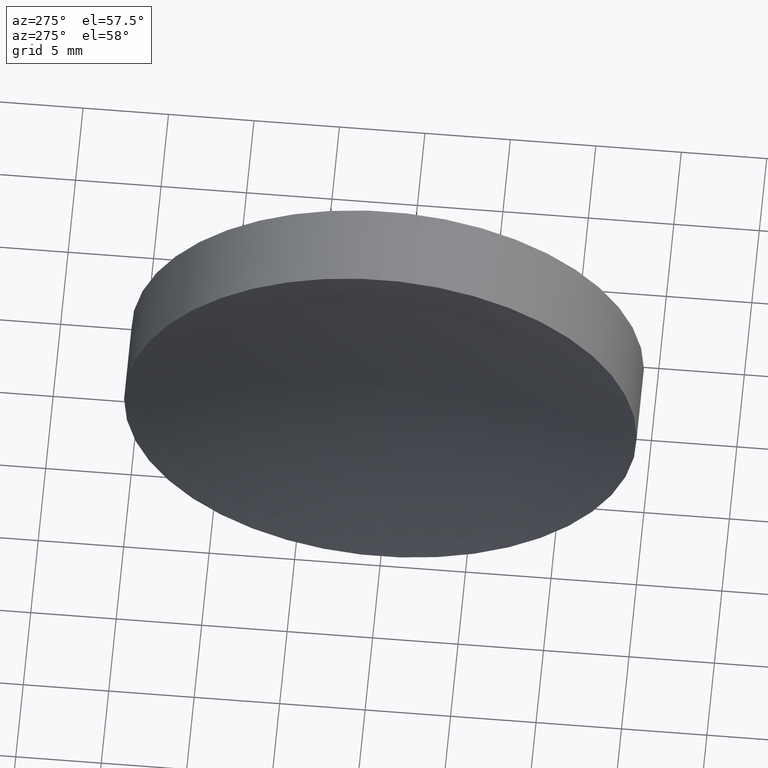
[diagram: clean part render]
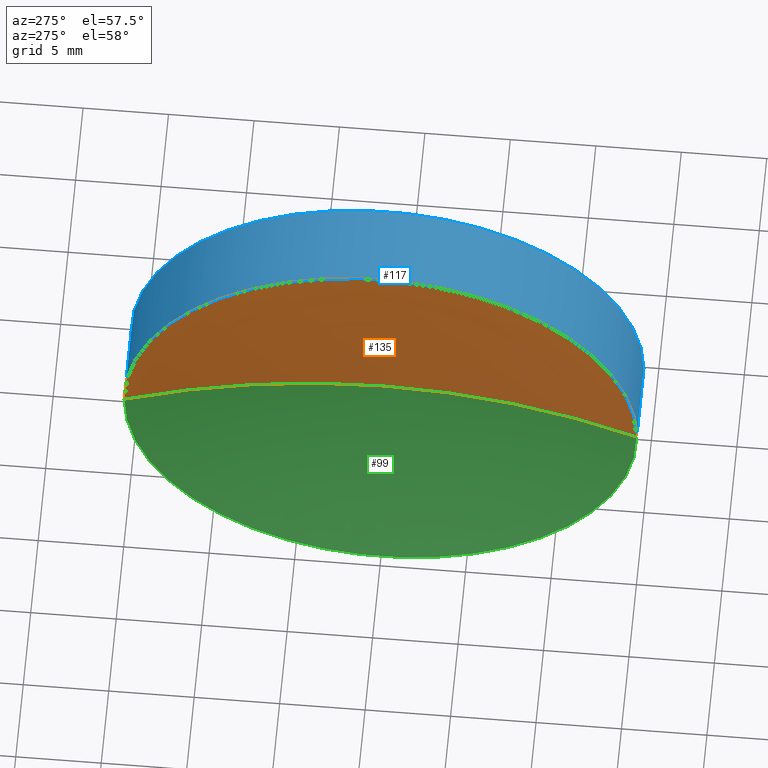
[diagram: same view with three faces highlighted in distinct colors, each labeled with its STEP entity id]
A machine part, auxiliary view with three faces highlighted in distinct colors.
Their STEP definitions:

[orange] entity #135 — the highlighted toroidal blend (fillet) surface has major radius 0.0114 mm and minor (blend) radius 51.64 mm.
#3 = TOROIDAL_SURFACE ( 'NONE', #62, -0.01138314681476834331, 51.63999999999999346 ) ;
#9 = VERTEX_POINT ( 'NONE', #167 ) ;
#11 = EDGE_CURVE ( 'NONE', #157, #9, #36, .T. ) ;
#12 = CARTESIAN_POINT ( 'NONE',  ( -4.729999999999999538, 15.00000000000000178, 0.000000000000000000 ) ) ;
#28 = DIRECTION ( 'NONE',  ( -1.156482317317871478E-16, 1.000000000000000000, 0.000000000000000000 ) ) ;
#36 = CIRCLE ( 'NONE', #70, 51.63999999999999346 ) ;
#39 = ORIENTED_EDGE ( 'NONE', *, *, #11, .F. ) ;
#40 = EDGE_CURVE ( 'NONE', #108, #157, #181, .T. ) ;
#45 = DIRECTION ( 'NONE',  ( -1.224646799147353454E-16, 1.000000000000000000, 0.000000000000000000 ) ) ;
#60 = DIRECTION ( 'NONE',  ( -1.000000000000000000, 0.000000000000000000, 0.000000000000000000 ) ) ;
#61 = CARTESIAN_POINT ( 'NONE',  ( -54.13999874539084090, 0.01138314681476171146, -1.394033431093043911E-18 ) ) ;
#62 = AXIS2_PLACEMENT_3D ( 'NONE', #95, #176, #45 ) ;
#70 = AXIS2_PLACEMENT_3D ( 'NONE', #61, #197, #194 ) ;
#73 = AXIS2_PLACEMENT_3D ( 'NONE', #74, #137, #60 ) ;
#74 = CARTESIAN_POINT ( 'NONE',  ( -54.13999874539084090, -0.01138314681477497342, 0.000000000000000000 ) ) ;
#75 = EDGE_LOOP ( 'NONE', ( #39, #182, #138 ) ) ;
#79 = EDGE_CURVE ( 'NONE', #108, #9, #115, .T. ) ;
#95 = CARTESIAN_POINT ( 'NONE',  ( -54.13999874539084090, -6.630573911106663054E-15, 0.000000000000000000 ) ) ;
#98 = AXIS2_PLACEMENT_3D ( 'NONE', #171, #155, #28 ) ;
#108 = VERTEX_POINT ( 'NONE', #12 ) ;
#114 = FACE_OUTER_BOUND ( 'NONE', #75, .T. ) ;
#115 = CIRCLE ( 'NONE', #73, 51.63999999999999346 ) ;
#135 = ADVANCED_FACE ( 'NONE', ( #114 ), #3, .F. ) ;
#137 = DIRECTION ( 'NONE',  ( -0.000000000000000000, 0.000000000000000000, -1.000000000000000000 ) ) ;
#138 = ORIENTED_EDGE ( 'NONE', *, *, #79, .T. ) ;
#145 = CARTESIAN_POINT ( 'NONE',  ( -4.729999999999997762, -15.00000000000000178, 1.836970198721029983E-15 ) ) ;
#155 = DIRECTION ( 'NONE',  ( 1.000000000000000000, 1.224646799147353454E-16, -0.000000000000000000 ) ) ;
#157 = VERTEX_POINT ( 'NONE', #145 ) ;
#167 = CARTESIAN_POINT ( 'NONE',  ( -2.500000000000000000, -3.061616997868383634E-16, 0.000000000000000000 ) ) ;
#171 = CARTESIAN_POINT ( 'NONE',  ( -4.729999999999999538, -5.792579359966981895E-16, 0.000000000000000000 ) ) ;
#176 = DIRECTION ( 'NONE',  ( 1.000000000000000000, 1.224646799147353454E-16, -0.000000000000000000 ) ) ;
#181 = CIRCLE ( 'NONE', #98, 15.00000000000000000 ) ;
#182 = ORIENTED_EDGE ( 'NONE', *, *, #40, .F. ) ;
#194 = DIRECTION ( 'NONE',  ( 0.000000000000000000, -1.000000000000000000, 1.224646799147353207E-16 ) ) ;
#197 = DIRECTION ( 'NONE',  ( -1.499759782661857882E-32, 1.224646799147353207E-16, 1.000000000000000000 ) ) ;

[blue] entity #117 — the highlighted cylindrical surface (partial cylindrical patch) has radius 15 mm, axis along (1, 0, -0).
#8 = VERTEX_POINT ( 'NONE', #63 ) ;
#12 = CARTESIAN_POINT ( 'NONE',  ( -4.729999999999999538, 15.00000000000000178, 0.000000000000000000 ) ) ;
#13 = CYLINDRICAL_SURFACE ( 'NONE', #94, 15.00000000000000000 ) ;
#19 = DIRECTION ( 'NONE',  ( -1.224646799147353207E-16, 1.000000000000000000, 0.000000000000000000 ) ) ;
#24 = EDGE_CURVE ( 'NONE', #108, #8, #43, .T. ) ;
#25 = VECTOR ( 'NONE', #41, 1000.000000000000000 ) ;
#26 = LINE ( 'NONE', #59, #130 ) ;
#28 = DIRECTION ( 'NONE',  ( -1.156482317317871478E-16, 1.000000000000000000, 0.000000000000000000 ) ) ;
#29 = CARTESIAN_POINT ( 'NONE',  ( 0.000000000000000000, 0.000000000000000000, 0.000000000000000000 ) ) ;
#31 = CIRCLE ( 'NONE', #175, 15.00000000000000000 ) ;
#33 = CARTESIAN_POINT ( 'NONE',  ( 2.763896918518806728E-15, -15.00000000000000000, 1.836970198721029589E-15 ) ) ;
#40 = EDGE_CURVE ( 'NONE', #108, #157, #181, .T. ) ;
#41 = DIRECTION ( 'NONE',  ( 1.000000000000000000, 1.224646799147353454E-16, -0.000000000000000000 ) ) ;
#43 = LINE ( 'NONE', #91, #25 ) ;
#44 = EDGE_CURVE ( 'NONE', #157, #195, #26, .T. ) ;
#59 = CARTESIAN_POINT ( 'NONE',  ( 1.836970198721029983E-15, -15.00000000000000000, 1.836970198721029589E-15 ) ) ;
#63 = CARTESIAN_POINT ( 'NONE',  ( -9.100434789232534355E-16, 15.00000000000000000, 0.000000000000000000 ) ) ;
#88 = ORIENTED_EDGE ( 'NONE', *, *, #24, .F. ) ;
#91 = CARTESIAN_POINT ( 'NONE',  ( -1.836970198721029983E-15, 15.00000000000000000, 0.000000000000000000 ) ) ;
#94 = AXIS2_PLACEMENT_3D ( 'NONE', #29, #139, #200 ) ;
#98 = AXIS2_PLACEMENT_3D ( 'NONE', #171, #155, #28 ) ;
#106 = EDGE_LOOP ( 'NONE', ( #199, #120, #134, #88 ) ) ;
#108 = VERTEX_POINT ( 'NONE', #12 ) ;
#117 = ADVANCED_FACE ( 'NONE', ( #122 ), #13, .T. ) ;
#120 = ORIENTED_EDGE ( 'NONE', *, *, #44, .T. ) ;
#122 = FACE_OUTER_BOUND ( 'NONE', #106, .T. ) ;
#123 = DIRECTION ( 'NONE',  ( 1.000000000000000000, 1.224646799147353454E-16, -0.000000000000000000 ) ) ;
#126 = CARTESIAN_POINT ( 'NONE',  ( 9.269267197977765478E-16, 1.135157840444502874E-31, 0.000000000000000000 ) ) ;
#128 = DIRECTION ( 'NONE',  ( 1.000000000000000000, 1.224646799147353454E-16, -0.000000000000000000 ) ) ;
#130 = VECTOR ( 'NONE', #123, 1000.000000000000000 ) ;
#134 = ORIENTED_EDGE ( 'NONE', *, *, #163, .F. ) ;
#139 = DIRECTION ( 'NONE',  ( 1.000000000000000000, 1.224646799147353454E-16, -0.000000000000000000 ) ) ;
#145 = CARTESIAN_POINT ( 'NONE',  ( -4.729999999999997762, -15.00000000000000178, 1.836970198721029983E-15 ) ) ;
#155 = DIRECTION ( 'NONE',  ( 1.000000000000000000, 1.224646799147353454E-16, -0.000000000000000000 ) ) ;
#157 = VERTEX_POINT ( 'NONE', #145 ) ;
#163 = EDGE_CURVE ( 'NONE', #8, #195, #31, .T. ) ;
#171 = CARTESIAN_POINT ( 'NONE',  ( -4.729999999999999538, -5.792579359966981895E-16, 0.000000000000000000 ) ) ;
#175 = AXIS2_PLACEMENT_3D ( 'NONE', #126, #128, #19 ) ;
#181 = CIRCLE ( 'NONE', #98, 15.00000000000000000 ) ;
#195 = VERTEX_POINT ( 'NONE', #33 ) ;
#199 = ORIENTED_EDGE ( 'NONE', *, *, #40, .T. ) ;
#200 = DIRECTION ( 'NONE',  ( -1.224646799147353207E-16, 1.000000000000000000, 0.000000000000000000 ) ) ;

[green] entity #99 — the highlighted toroidal blend (fillet) surface has major radius 0.0114 mm and minor (blend) radius 51.64 mm.
#5 = EDGE_CURVE ( 'NONE', #157, #108, #38, .T. ) ;
#9 = VERTEX_POINT ( 'NONE', #167 ) ;
#11 = EDGE_CURVE ( 'NONE', #157, #9, #36, .T. ) ;
#12 = CARTESIAN_POINT ( 'NONE',  ( -4.729999999999999538, 15.00000000000000178, 0.000000000000000000 ) ) ;
#30 = ORIENTED_EDGE ( 'NONE', *, *, #5, .F. ) ;
#36 = CIRCLE ( 'NONE', #70, 51.63999999999999346 ) ;
#38 = CIRCLE ( 'NONE', #149, 15.00000000000000000 ) ;
#42 = CARTESIAN_POINT ( 'NONE',  ( -4.729999999999999538, -5.792579359966981895E-16, 0.000000000000000000 ) ) ;
#47 = AXIS2_PLACEMENT_3D ( 'NONE', #133, #57, #121 ) ;
#57 = DIRECTION ( 'NONE',  ( 1.000000000000000000, 1.224646799147353454E-16, -0.000000000000000000 ) ) ;
#60 = DIRECTION ( 'NONE',  ( -1.000000000000000000, 0.000000000000000000, 0.000000000000000000 ) ) ;
#61 = CARTESIAN_POINT ( 'NONE',  ( -54.13999874539084090, 0.01138314681476171146, -1.394033431093043911E-18 ) ) ;
#70 = AXIS2_PLACEMENT_3D ( 'NONE', #61, #197, #194 ) ;
#73 = AXIS2_PLACEMENT_3D ( 'NONE', #74, #137, #60 ) ;
#74 = CARTESIAN_POINT ( 'NONE',  ( -54.13999874539084090, -0.01138314681477497342, 0.000000000000000000 ) ) ;
#76 = DIRECTION ( 'NONE',  ( -1.156482317317871478E-16, 1.000000000000000000, 0.000000000000000000 ) ) ;
#79 = EDGE_CURVE ( 'NONE', #108, #9, #115, .T. ) ;
#93 = EDGE_LOOP ( 'NONE', ( #30, #152, #172 ) ) ;
#99 = ADVANCED_FACE ( 'NONE', ( #107 ), #136, .F. ) ;
#107 = FACE_OUTER_BOUND ( 'NONE', #93, .T. ) ;
#108 = VERTEX_POINT ( 'NONE', #12 ) ;
#115 = CIRCLE ( 'NONE', #73, 51.63999999999999346 ) ;
#121 = DIRECTION ( 'NONE',  ( -1.224646799147353454E-16, 1.000000000000000000, 0.000000000000000000 ) ) ;
#133 = CARTESIAN_POINT ( 'NONE',  ( -54.13999874539084090, -6.630573911106663054E-15, 0.000000000000000000 ) ) ;
#136 = TOROIDAL_SURFACE ( 'NONE', #47, -0.01138314681476834331, 51.63999999999999346 ) ;
#137 = DIRECTION ( 'NONE',  ( -0.000000000000000000, 0.000000000000000000, -1.000000000000000000 ) ) ;
#145 = CARTESIAN_POINT ( 'NONE',  ( -4.729999999999997762, -15.00000000000000178, 1.836970198721029983E-15 ) ) ;
#149 = AXIS2_PLACEMENT_3D ( 'NONE', #42, #184, #76 ) ;
#152 = ORIENTED_EDGE ( 'NONE', *, *, #11, .T. ) ;
#157 = VERTEX_POINT ( 'NONE', #145 ) ;
#167 = CARTESIAN_POINT ( 'NONE',  ( -2.500000000000000000, -3.061616997868383634E-16, 0.000000000000000000 ) ) ;
#172 = ORIENTED_EDGE ( 'NONE', *, *, #79, .F. ) ;
#184 = DIRECTION ( 'NONE',  ( 1.000000000000000000, 1.224646799147353454E-16, -0.000000000000000000 ) ) ;
#194 = DIRECTION ( 'NONE',  ( 0.000000000000000000, -1.000000000000000000, 1.224646799147353207E-16 ) ) ;
#197 = DIRECTION ( 'NONE',  ( -1.499759782661857882E-32, 1.224646799147353207E-16, 1.000000000000000000 ) ) ;